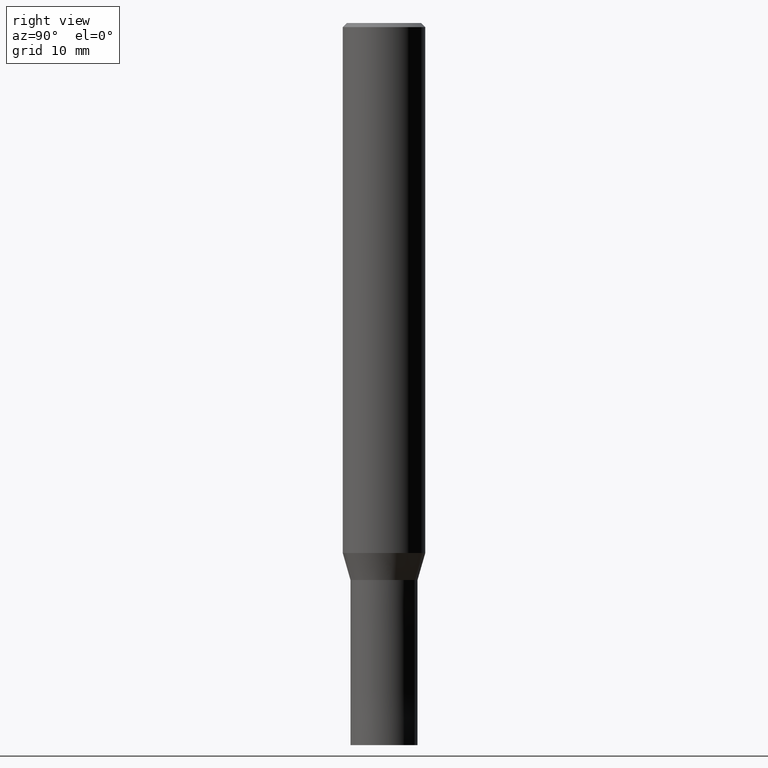
[diagram: clean part render]
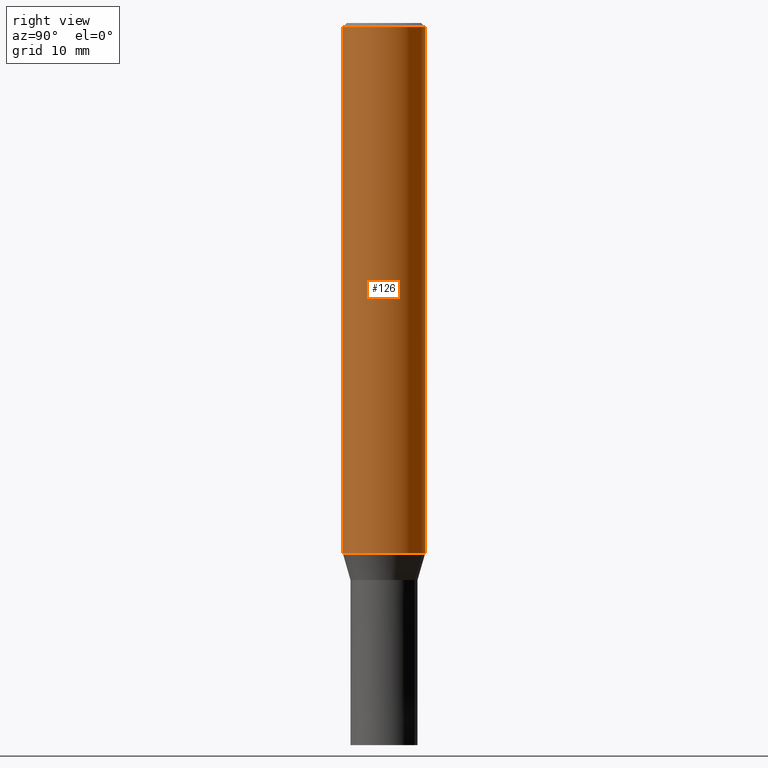
[diagram: same view with one face highlighted and labeled with its STEP entity id]
A machine part, right view. The second image highlights one B-rep face of the part: STEP entity #126.
In plain terms, the highlighted cylindrical surface (partial cylindrical patch) has radius 4 mm, axis along (-0, -0, 1).
Its self-contained STEP definition (entity closure, byte-faithful):
#90=VERTEX_POINT('',#211);
#92=EDGE_CURVE('',#90,#134,#213,.T.);
#94=VERTEX_POINT('',#215);
#106=VERTEX_POINT('',#231);
#116=EDGE_CURVE('',#90,#94,#241,.T.);
#126=ADVANCED_FACE('',(#253),#254,.T.);
#132=EDGE_CURVE('',#106,#94,#260,.T.);
#134=VERTEX_POINT('',#262);
#178=EDGE_CURVE('',#134,#106,#312,.T.);
#211=CARTESIAN_POINT('',(0.0,4.0,-0.399999999999999));
#213=LINE('',#344,#345);
#215=CARTESIAN_POINT('',(4.89842541528951E-016,-4.0,-0.399999999999999));
#231=CARTESIAN_POINT('',(4.89842541528951E-016,-4.0,-51.384));
#241=CIRCLE('',#380,4.0);
#253=FACE_OUTER_BOUND('',#393,.T.);
#254=CYLINDRICAL_SURFACE('',#394,4.0);
#260=LINE('',#401,#402);
#262=CARTESIAN_POINT('',(0.0,4.0,-51.384));
#312=CIRCLE('',#467,4.0);
#344=CARTESIAN_POINT('',(-4.89842541528951E-016,4.0,-25.892));
#345=VECTOR('',#480,1.0);
#380=AXIS2_PLACEMENT_3D('',#511,#512,#513);
#393=EDGE_LOOP('',(#532,#533,#534,#535));
#394=AXIS2_PLACEMENT_3D('',#536,#537,#538);
#401=CARTESIAN_POINT('',(4.89842541528951E-016,-4.0,-25.892));
#402=VECTOR('',#539,1.0);
#467=AXIS2_PLACEMENT_3D('',#609,#610,#611);
#480=DIRECTION('',(0.0,0.0,-1.0));
#511=CARTESIAN_POINT('',(0.0,0.0,-0.399999999999999));
#512=DIRECTION('',(0.0,0.0,-1.0));
#513=DIRECTION('',(0.0,1.0,0.0));
#532=ORIENTED_EDGE('',*,*,#92,.F.);
#533=ORIENTED_EDGE('',*,*,#116,.T.);
#534=ORIENTED_EDGE('',*,*,#132,.F.);
#535=ORIENTED_EDGE('',*,*,#178,.F.);
#536=CARTESIAN_POINT('',(0.0,0.0,-25.892));
#537=DIRECTION('',(-0.0,-0.0,1.0));
#538=DIRECTION('',(0.0,1.0,0.0));
#539=DIRECTION('',(-0.0,-0.0,1.0));
#609=CARTESIAN_POINT('',(0.0,0.0,-51.384));
#610=DIRECTION('',(0.0,0.0,-1.0));
#611=DIRECTION('',(0.0,1.0,0.0));